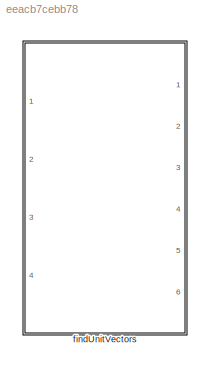
MODEL slx_eeacb7cebb78
KIND library
CONFIG AbsTol = auto
CONFIG EnableMultiTasking = off
CONFIG FixedStep = auto
CONFIG MaxStep = auto
CONFIG MinStep = auto
CONFIG RelTol = 1e-3
CONFIG SampleTimeConstraint = Unconstrained
CONFIG Solver = VariableStepAuto
CONFIG SolverName = VariableStepAuto
CONFIG StartTime = 0.0
CONFIG StopTime = 10.0
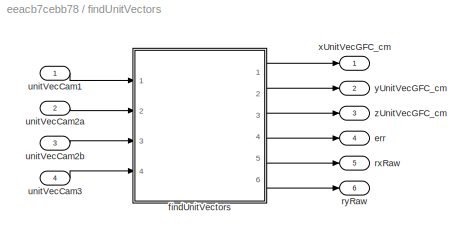
BLOCK [SubSystem] findUnitVectors
  Ports = [4, 6]
  RequestExecContextInheritance = off
BLOCK [Outport] findUnitVectors/err
  IconDisplay = Port number
  Port = 4
  PortDimensions = 1
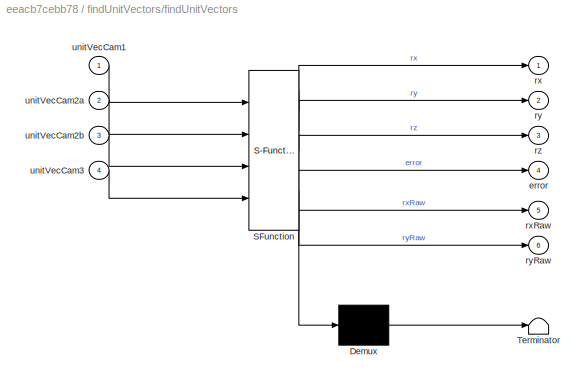
BLOCK [SubSystem] findUnitVectors/findUnitVectors
  ErrorFcn = Stateflow.Translate.translate
  PermitHierarchicalResolution = ExplicitOnly
  Ports = [4, 6]
  RequestExecContextInheritance = off
  SFBlockType = MATLAB Function
  TreatAsAtomicUnit = on
BLOCK [Demux] findUnitVectors/findUnitVectors/ Demux 
  Outputs = 1
  Ports = [1, 1]
BLOCK [S-Function] findUnitVectors/findUnitVectors/ SFunction 
  EnableBusSupport = off
  FunctionName = sf_sfun
  Parameters = DBL,DSB,bottomASeparation_cm,bottomBSeparation_cm,sideSeparation_cm,topSeparation_cm
  PortCounts = [4 7]
  Ports = [4, 7]
  SFcnIsStateOwnerBlock = off
  SFunctionDeploymentMode = off
  Tag = Stateflow S-Function findUnitVectors_ul 23
BLOCK [Terminator] findUnitVectors/findUnitVectors/ Terminator 
BLOCK [Outport] findUnitVectors/findUnitVectors/error
  IconDisplay = Port number
  Port = 4
BLOCK [Outport] findUnitVectors/findUnitVectors/rx
  IconDisplay = Port number
BLOCK [Outport] findUnitVectors/findUnitVectors/rxRaw
  IconDisplay = Port number
  Port = 5
BLOCK [Outport] findUnitVectors/findUnitVectors/ry
  IconDisplay = Port number
  Port = 2
BLOCK [Outport] findUnitVectors/findUnitVectors/ryRaw
  IconDisplay = Port number
  Port = 6
BLOCK [Outport] findUnitVectors/findUnitVectors/rz
  IconDisplay = Port number
  Port = 3
BLOCK [Inport] findUnitVectors/findUnitVectors/unitVecCam1
  IconDisplay = Port number
BLOCK [Inport] findUnitVectors/findUnitVectors/unitVecCam2a
  IconDisplay = Port number
  Port = 2
BLOCK [Inport] findUnitVectors/findUnitVectors/unitVecCam2b
  IconDisplay = Port number
  Port = 3
BLOCK [Inport] findUnitVectors/findUnitVectors/unitVecCam3
  IconDisplay = Port number
  Port = 4
BLOCK [Outport] findUnitVectors/rxRaw
  IconDisplay = Port number
  Port = 5
BLOCK [Outport] findUnitVectors/ryRaw
  IconDisplay = Port number
  Port = 6
BLOCK [Inport] findUnitVectors/unitVecCam1
  IconDisplay = Port number
BLOCK [Inport] findUnitVectors/unitVecCam2a
  IconDisplay = Port number
  Port = 2
BLOCK [Inport] findUnitVectors/unitVecCam2b
  IconDisplay = Port number
  Port = 3
BLOCK [Inport] findUnitVectors/unitVecCam3
  IconDisplay = Port number
  Port = 4
BLOCK [Outport] findUnitVectors/xUnitVecGFC_cm
  IconDisplay = Port number
  PortDimensions = [3 1]
BLOCK [Outport] findUnitVectors/yUnitVecGFC_cm
  IconDisplay = Port number
  Port = 2
  PortDimensions = [3 1]
BLOCK [Outport] findUnitVectors/zUnitVecGFC_cm
  IconDisplay = Port number
  Port = 3
  PortDimensions = [3 1]
LINE findUnitVectors/findUnitVectors:1 -> findUnitVectors/xUnitVecGFC_cm:1
LINE findUnitVectors/findUnitVectors:2 -> findUnitVectors/yUnitVecGFC_cm:1
LINE findUnitVectors/findUnitVectors:3 -> findUnitVectors/zUnitVecGFC_cm:1
LINE findUnitVectors/findUnitVectors:4 -> findUnitVectors/err:1
LINE findUnitVectors/findUnitVectors:5 -> findUnitVectors/rxRaw:1
LINE findUnitVectors/findUnitVectors:6 -> findUnitVectors/ryRaw:1
LINE findUnitVectors/unitVecCam1:1 -> findUnitVectors/findUnitVectors:1
LINE findUnitVectors/unitVecCam2a:1 -> findUnitVectors/findUnitVectors:2
LINE findUnitVectors/unitVecCam2b:1 -> findUnitVectors/findUnitVectors:3
LINE findUnitVectors/unitVecCam3:1 -> findUnitVectors/findUnitVectors:4
CHART findUnitVectors/findUnitVectors states=1 transitions=1
  STATE_LABEL 'eML_blk_kernel()'
  STATE_LABEL 'SCRIPT:\nfunction [rx,ry,rz,error,rxRaw,ryRaw] = fcn(unitVecCam1,unitVecCam2a,unitVecCam2b,...\n    unitVecCam3,DSB,DBL,bottomASeparation_cm,bottomBSeparation_cm,sideSeparation_cm,topSeparation_cm)\n%#codegen\n[rx,ry,rz,error,rxRaw,ryRaw] = findUnitVectors(unitVecCam1,unitVecCam2a,...\n    unitVecCam2b,unitVecCam3,sideSeparation_cm,bottomASeparation_cm,bottomBSeparation_cm,topSeparation_cm,DSB,DBL);\nen...<+1ch>'
